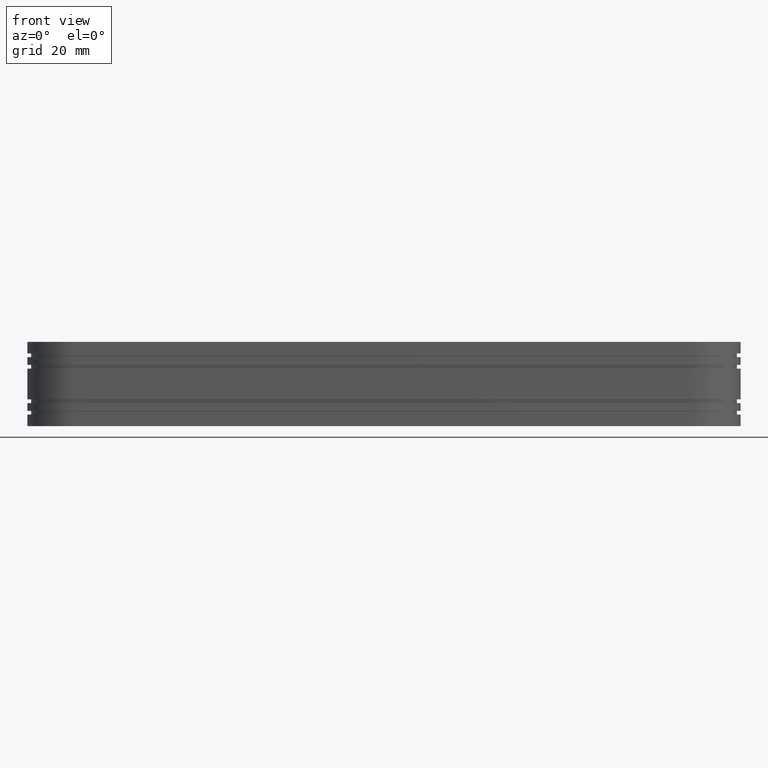
[diagram: clean part render]
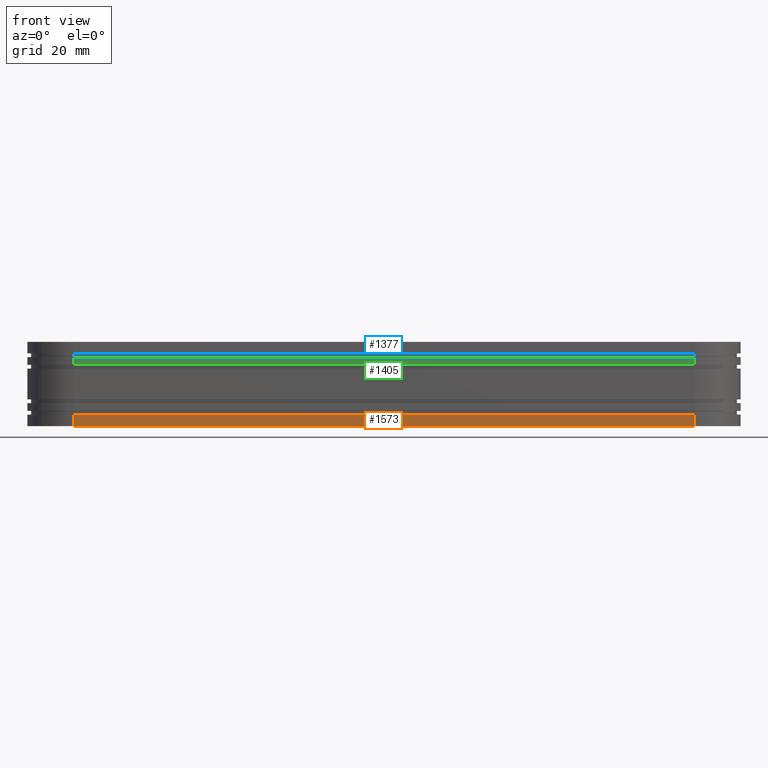
[diagram: same view with three faces highlighted in distinct colors, each labeled with its STEP entity id]
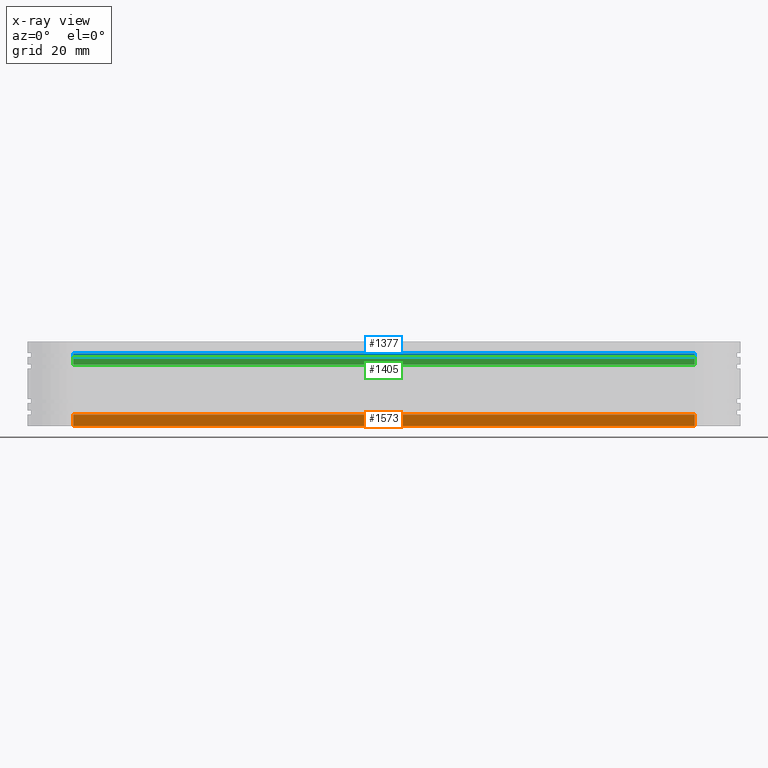
[diagram: x-ray of the same camera — body ghosted, the three highlighted faces saturated]
A machine part, front view with three faces highlighted in distinct colors.
The next image is the same camera in x-ray (body ghosted, the three faces saturated) — at least one of them is partly hidden behind the body in this view.
Their STEP definitions:

[orange] entity #1573 — the highlighted face is a freeform B-spline surface patch.
#1230=CARTESIAN_POINT('',(170.999900000000000,-36.0,-8.0));
#1231=VERTEX_POINT('',#1230);
#1245=CARTESIAN_POINT('',(170.999900000000000,-36.0,-11.0));
#1246=VERTEX_POINT('',#1245);
#1247=CARTESIAN_POINT('',(170.999900000000000,-36.0,-11.0));
#1248=CARTESIAN_POINT('',(170.999900000000000,-36.0,-8.0));
#1249=QUASI_UNIFORM_CURVE('',1,(#1247,#1248),.UNSPECIFIED.,.F.,.U.);
#1250=EDGE_CURVE('',#1246,#1231,#1249,.T.);
#1546=CARTESIAN_POINT('',(0.908105887764684,-36.0,-11.149849994185420));
#1547=CARTESIAN_POINT('',(0.908105887764684,-36.0,-7.850149925348312));
#1548=CARTESIAN_POINT('',(179.091786870275510,-36.0,-11.149849994185420));
#1549=CARTESIAN_POINT('',(179.091786870275510,-36.0,-7.850149925348312));
#1550=B_SPLINE_SURFACE_WITH_KNOTS('',1,1,((#1546,#1548),(#1547,#1549)),.UNSPECIFIED.,.F.,.F.,.U.,(2,2),(2,2),(0.0,3.299700068837106),(0.0,178.183680982510790),.UNSPECIFIED.);
#1551=CARTESIAN_POINT('',(9.0,-36.0,-8.0));
#1552=VERTEX_POINT('',#1551);
#1553=CARTESIAN_POINT('',(9.0,-36.0,-8.0));
#1554=CARTESIAN_POINT('',(170.999900000000000,-36.0,-8.0));
#1555=QUASI_UNIFORM_CURVE('',1,(#1553,#1554),.UNSPECIFIED.,.F.,.U.);
#1556=EDGE_CURVE('',#1552,#1231,#1555,.T.);
#1557=ORIENTED_EDGE('',*,*,#1556,.F.);
#1558=CARTESIAN_POINT('',(9.0,-36.0,-11.0));
#1559=VERTEX_POINT('',#1558);
#1560=CARTESIAN_POINT('',(9.0,-36.0,-11.0));
#1561=CARTESIAN_POINT('',(9.0,-36.0,-8.0));
#1562=QUASI_UNIFORM_CURVE('',1,(#1560,#1561),.UNSPECIFIED.,.F.,.U.);
#1563=EDGE_CURVE('',#1559,#1552,#1562,.T.);
#1564=ORIENTED_EDGE('',*,*,#1563,.F.);
#1565=CARTESIAN_POINT('',(9.0,-36.0,-11.0));
#1566=CARTESIAN_POINT('',(170.999900000000000,-36.0,-11.0));
#1567=QUASI_UNIFORM_CURVE('',1,(#1565,#1566),.UNSPECIFIED.,.F.,.U.);
#1568=EDGE_CURVE('',#1559,#1246,#1567,.T.);
#1569=ORIENTED_EDGE('',*,*,#1568,.T.);
#1570=ORIENTED_EDGE('',*,*,#1250,.T.);
#1571=EDGE_LOOP('',(#1557,#1564,#1569,#1570));
#1572=FACE_OUTER_BOUND('',#1571,.T.);
#1573=ADVANCED_FACE('',(#1572),#1550,.F.);

[blue] entity #1377 — the highlighted face is a freeform B-spline surface patch.
#859=CARTESIAN_POINT('',(170.999900000000000,-35.0,8.0));
#860=VERTEX_POINT('',#859);
#874=CARTESIAN_POINT('',(170.999900000000000,-35.0,7.0));
#875=VERTEX_POINT('',#874);
#876=CARTESIAN_POINT('',(170.999900000000000,-35.0,7.0));
#877=CARTESIAN_POINT('',(170.999900000000000,-35.0,8.0));
#878=QUASI_UNIFORM_CURVE('',1,(#876,#877),.UNSPECIFIED.,.F.,.U.);
#879=EDGE_CURVE('',#875,#860,#878,.T.);
#1350=CARTESIAN_POINT('',(0.908105887764684,-35.0,6.950050001938193));
#1351=CARTESIAN_POINT('',(0.908105887764684,-35.0,8.049950024883895));
#1352=CARTESIAN_POINT('',(179.091786870275510,-35.0,6.950050001938193));
#1353=CARTESIAN_POINT('',(179.091786870275510,-35.0,8.049950024883895));
#1354=B_SPLINE_SURFACE_WITH_KNOTS('',1,1,((#1350,#1352),(#1351,#1353)),.UNSPECIFIED.,.F.,.F.,.U.,(2,2),(2,2),(0.041708334948495,0.958291687403247),(0.0,178.183680982510790),.UNSPECIFIED.);
#1355=CARTESIAN_POINT('',(9.0,-35.0,8.0));
#1356=VERTEX_POINT('',#1355);
#1357=CARTESIAN_POINT('',(9.0,-35.0,8.0));
#1358=CARTESIAN_POINT('',(170.999900000000000,-35.0,8.0));
#1359=QUASI_UNIFORM_CURVE('',1,(#1357,#1358),.UNSPECIFIED.,.F.,.U.);
#1360=EDGE_CURVE('',#1356,#860,#1359,.T.);
#1361=ORIENTED_EDGE('',*,*,#1360,.F.);
#1362=CARTESIAN_POINT('',(9.0,-35.0,7.0));
#1363=VERTEX_POINT('',#1362);
#1364=CARTESIAN_POINT('',(9.0,-35.0,7.0));
#1365=CARTESIAN_POINT('',(9.0,-35.0,8.0));
#1366=QUASI_UNIFORM_CURVE('',1,(#1364,#1365),.UNSPECIFIED.,.F.,.U.);
#1367=EDGE_CURVE('',#1363,#1356,#1366,.T.);
#1368=ORIENTED_EDGE('',*,*,#1367,.F.);
#1369=CARTESIAN_POINT('',(9.0,-35.0,7.0));
#1370=CARTESIAN_POINT('',(170.999900000000000,-35.0,7.0));
#1371=QUASI_UNIFORM_CURVE('',1,(#1369,#1370),.UNSPECIFIED.,.F.,.U.);
#1372=EDGE_CURVE('',#1363,#875,#1371,.T.);
#1373=ORIENTED_EDGE('',*,*,#1372,.T.);
#1374=ORIENTED_EDGE('',*,*,#879,.T.);
#1375=EDGE_LOOP('',(#1361,#1368,#1373,#1374));
#1376=FACE_OUTER_BOUND('',#1375,.T.);
#1377=ADVANCED_FACE('',(#1376),#1354,.F.);

[green] entity #1405 — the highlighted face is a freeform B-spline surface patch.
#912=CARTESIAN_POINT('',(170.999900000000000,-36.0,7.0));
#913=VERTEX_POINT('',#912);
#927=CARTESIAN_POINT('',(170.999900000000000,-36.0,5.0));
#928=VERTEX_POINT('',#927);
#929=CARTESIAN_POINT('',(170.999900000000000,-36.0,5.0));
#930=CARTESIAN_POINT('',(170.999900000000000,-36.0,7.0));
#931=QUASI_UNIFORM_CURVE('',1,(#929,#930),.UNSPECIFIED.,.F.,.U.);
#932=EDGE_CURVE('',#928,#913,#931,.T.);
#1378=CARTESIAN_POINT('',(0.908105887764684,-36.0,4.900100003876388));
#1379=CARTESIAN_POINT('',(0.908105887764684,-36.0,7.099900049767793));
#1380=CARTESIAN_POINT('',(179.091786870275510,-36.0,4.900100003876388));
#1381=CARTESIAN_POINT('',(179.091786870275510,-36.0,7.099900049767793));
#1382=B_SPLINE_SURFACE_WITH_KNOTS('',1,1,((#1378,#1380),(#1379,#1381)),.UNSPECIFIED.,.F.,.F.,.U.,(2,2),(2,2),(0.0,2.199800045891405),(0.0,178.183680982510790),.UNSPECIFIED.);
#1383=CARTESIAN_POINT('',(9.0,-36.0,7.0));
#1384=VERTEX_POINT('',#1383);
#1385=CARTESIAN_POINT('',(9.0,-36.0,7.0));
#1386=CARTESIAN_POINT('',(170.999900000000000,-36.0,7.0));
#1387=QUASI_UNIFORM_CURVE('',1,(#1385,#1386),.UNSPECIFIED.,.F.,.U.);
#1388=EDGE_CURVE('',#1384,#913,#1387,.T.);
#1389=ORIENTED_EDGE('',*,*,#1388,.F.);
#1390=CARTESIAN_POINT('',(9.0,-36.0,5.0));
#1391=VERTEX_POINT('',#1390);
#1392=CARTESIAN_POINT('',(9.0,-36.0,5.0));
#1393=CARTESIAN_POINT('',(9.0,-36.0,7.0));
#1394=QUASI_UNIFORM_CURVE('',1,(#1392,#1393),.UNSPECIFIED.,.F.,.U.);
#1395=EDGE_CURVE('',#1391,#1384,#1394,.T.);
#1396=ORIENTED_EDGE('',*,*,#1395,.F.);
#1397=CARTESIAN_POINT('',(9.0,-36.0,5.0));
#1398=CARTESIAN_POINT('',(170.999900000000000,-36.0,5.0));
#1399=QUASI_UNIFORM_CURVE('',1,(#1397,#1398),.UNSPECIFIED.,.F.,.U.);
#1400=EDGE_CURVE('',#1391,#928,#1399,.T.);
#1401=ORIENTED_EDGE('',*,*,#1400,.T.);
#1402=ORIENTED_EDGE('',*,*,#932,.T.);
#1403=EDGE_LOOP('',(#1389,#1396,#1401,#1402));
#1404=FACE_OUTER_BOUND('',#1403,.T.);
#1405=ADVANCED_FACE('',(#1404),#1382,.F.);